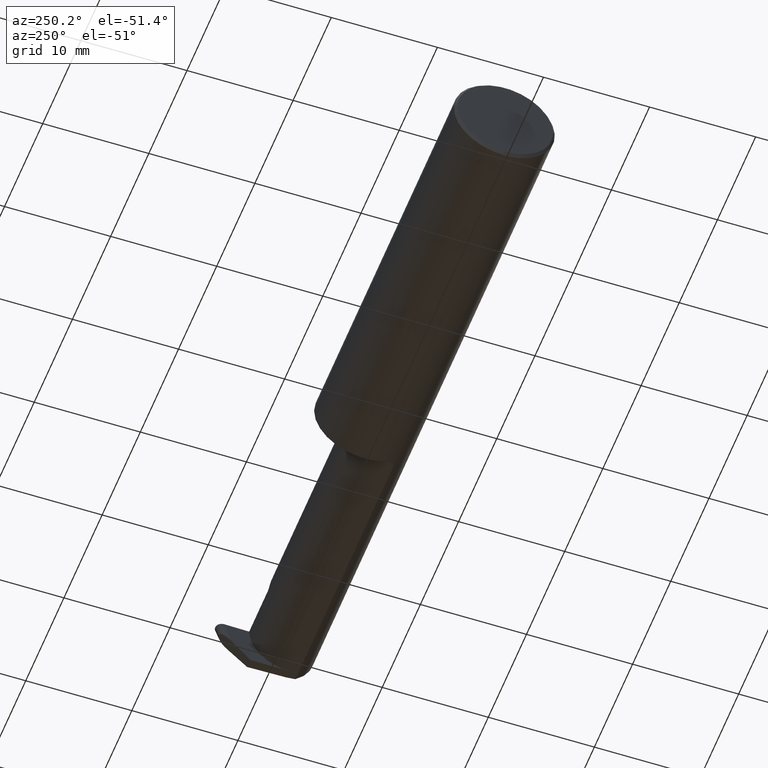
[diagram: clean part render]
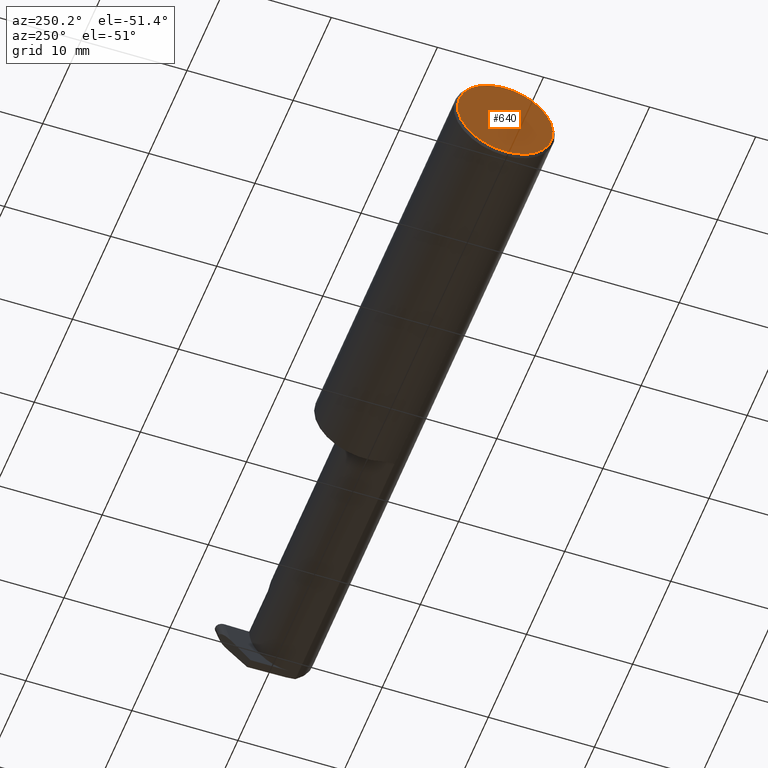
[diagram: same view with one face highlighted and labeled with its STEP entity id]
A machine part, auxiliary view. The second image highlights one B-rep face of the part: STEP entity #640.
In plain terms, the highlighted planar face has unit normal (1, 0, 0).
Its self-contained STEP definition (entity closure, byte-faithful):
#7 = CARTESIAN_POINT ( 'NONE',  ( 0.000000000000000000, 0.000000000000000000, 0.000000000000000000 ) ) ;
#10 = PLANE ( 'NONE',  #147 ) ;
#32 = VECTOR ( 'NONE', #115, 39.37007874015748143 ) ;
#51 = ORIENTED_EDGE ( 'NONE', *, *, #95, .T. ) ;
#79 = CIRCLE ( 'NONE', #535, 0.1773499999999999521 ) ;
#95 = EDGE_CURVE ( 'NONE', #122, #191, #79, .T. ) ;
#112 = CARTESIAN_POINT ( 'NONE',  ( 0.000000000000000000, 0.000000000000000000, 0.000000000000000000 ) ) ;
#115 = DIRECTION ( 'NONE',  ( -0.000000000000000000, 1.000000000000000000, -0.000000000000000000 ) ) ;
#122 = VERTEX_POINT ( 'NONE', #530 ) ;
#147 = AXIS2_PLACEMENT_3D ( 'NONE', #7, #284, #184 ) ;
#170 = DIRECTION ( 'NONE',  ( 0.000000000000000000, 0.000000000000000000, -1.000000000000000000 ) ) ;
#184 = DIRECTION ( 'NONE',  ( 0.000000000000000000, 0.000000000000000000, -1.000000000000000000 ) ) ;
#191 = VERTEX_POINT ( 'NONE', #323 ) ;
#250 = AXIS2_PLACEMENT_3D ( 'NONE', #112, #482, #320 ) ;
#284 = DIRECTION ( 'NONE',  ( 1.000000000000000000, 0.000000000000000000, 0.000000000000000000 ) ) ;
#299 = ORIENTED_EDGE ( 'NONE', *, *, #370, .T. ) ;
#313 = ORIENTED_EDGE ( 'NONE', *, *, #359, .T. ) ;
#317 = DIRECTION ( 'NONE',  ( -1.000000000000000000, -0.000000000000000000, -0.000000000000000000 ) ) ;
#320 = DIRECTION ( 'NONE',  ( 0.000000000000000000, 0.000000000000000000, -1.000000000000000000 ) ) ;
#323 = CARTESIAN_POINT ( 'NONE',  ( 0.000000000000000000, 0.000000000000000000, -0.1773499999999999521 ) ) ;
#359 = EDGE_CURVE ( 'NONE', #521, #122, #600, .T. ) ;
#369 = EDGE_LOOP ( 'NONE', ( #313, #51, #299 ) ) ;
#370 = EDGE_CURVE ( 'NONE', #191, #521, #689, .T. ) ;
#376 = CARTESIAN_POINT ( 'NONE',  ( 0.000000000000000000, 0.1873499999999998500, 0.1763499999999999235 ) ) ;
#385 = FACE_OUTER_BOUND ( 'NONE', #369, .T. ) ;
#426 = CARTESIAN_POINT ( 'NONE',  ( 0.000000000000000000, 0.000000000000000000, 0.000000000000000000 ) ) ;
#482 = DIRECTION ( 'NONE',  ( -1.000000000000000000, -0.000000000000000000, -0.000000000000000000 ) ) ;
#507 = CARTESIAN_POINT ( 'NONE',  ( 0.000000000000000000, -0.01880691362238934641, 0.1763499999999999235 ) ) ;
#521 = VERTEX_POINT ( 'NONE', #507 ) ;
#530 = CARTESIAN_POINT ( 'NONE',  ( 0.000000000000000000, 0.01880691362238934988, 0.1763499999999999235 ) ) ;
#535 = AXIS2_PLACEMENT_3D ( 'NONE', #426, #317, #170 ) ;
#600 = LINE ( 'NONE', #376, #32 ) ;
#640 = ADVANCED_FACE ( 'NONE', ( #385 ), #10, .F. ) ;
#689 = CIRCLE ( 'NONE', #250, 0.1773499999999999521 ) ;